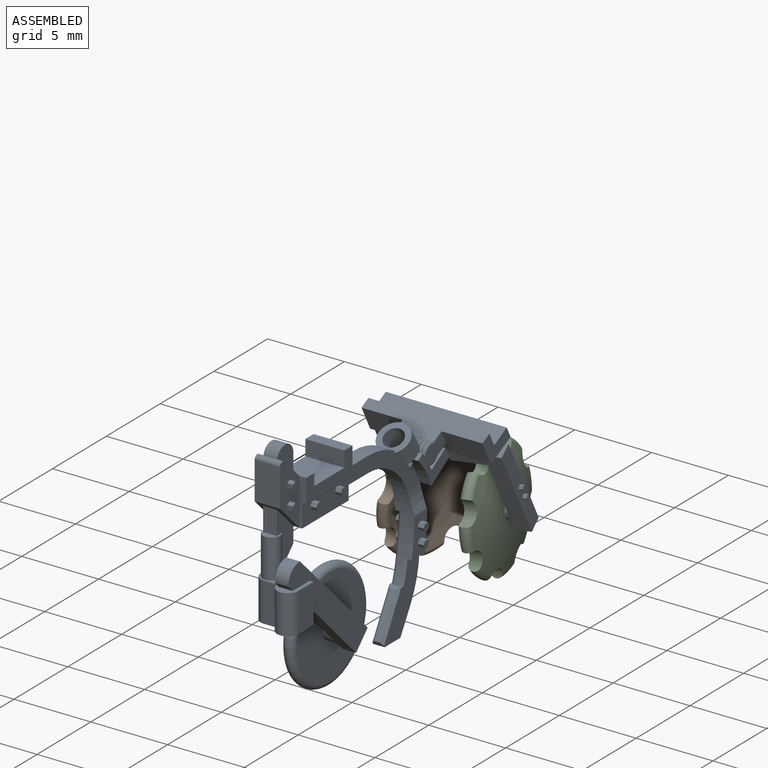
[diagram: assembled view]
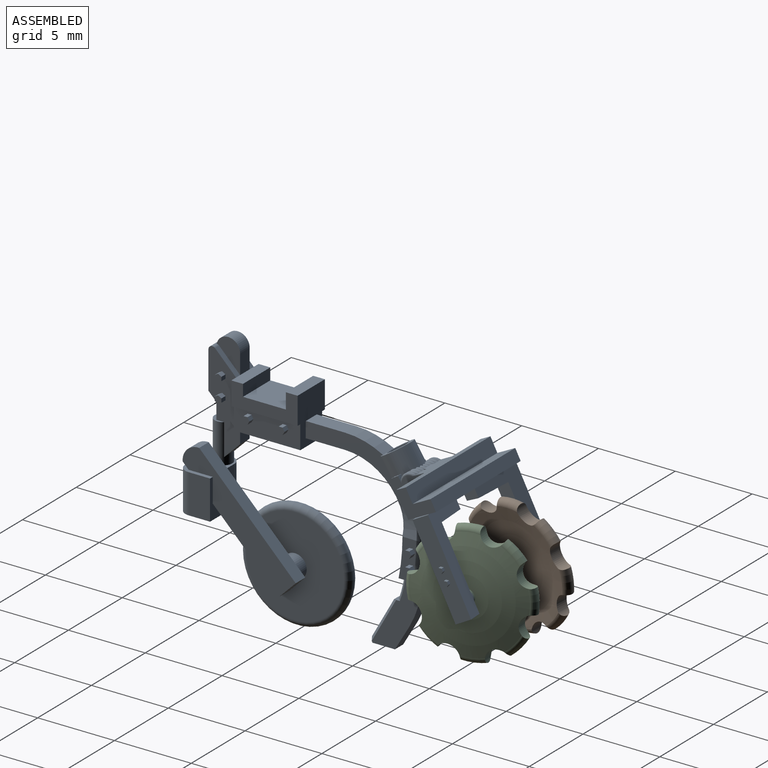
[diagram: assembled view, second angle]
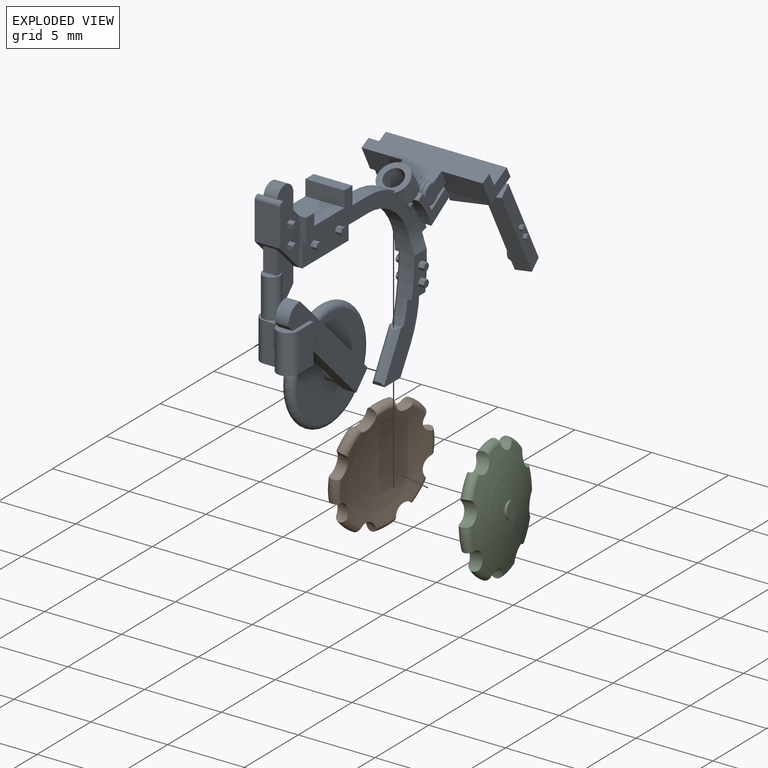
[diagram: exploded view]
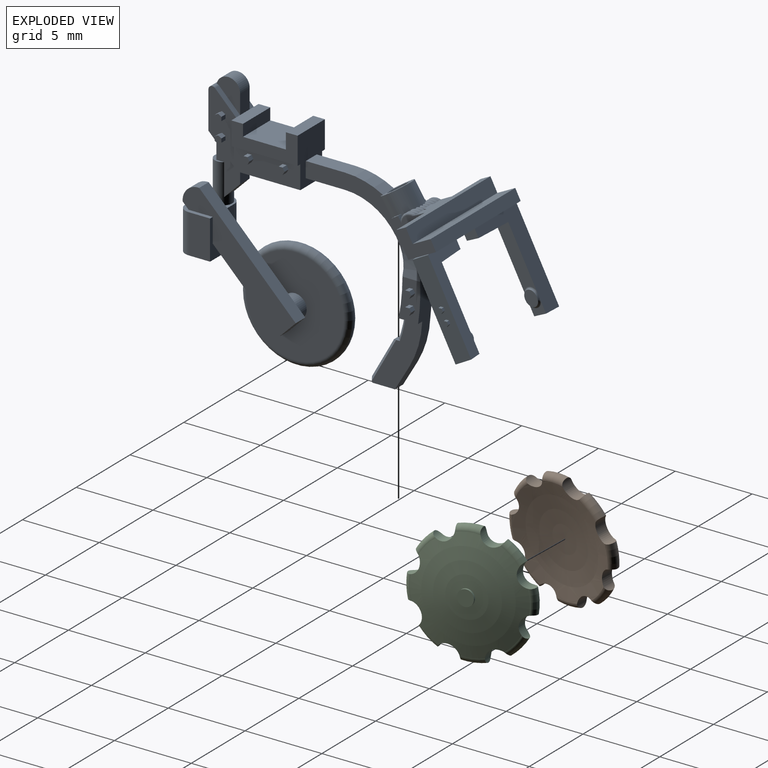
[diagram: exploded view, second angle]
ASSEMBLY  parts=3 mates=4
PART A: 291 faces, bbox 9x20.5x16.3 mm
  f0: cylinder r=1.02mm len=2.45mm, axis (0,0.54,-0.84), area 7mm2, adj f2,f3,f4,f5,f6,f7,f8,f12
  f1: cylinder r=0.64mm len=2.4mm, axis (0,-0.54,0.84), area 7.8mm2, adj f9,f10,f11,f51,f52,f132,f287,f288
  f2: torus R=0.57mm, axis (1,0,0), area 0.4mm2, adj f0,f3,f8,f138,f141
  f3: torus R=0.57mm, axis (1,0,0), area 0.2mm2, adj f0,f2,f4,f141
  f4: torus R=0.57mm, axis (1,0,0), area 0.1mm2, adj f0,f3,f12,f22,f24,f43,f141
  f5: torus R=0.57mm, axis (1,0,0), area 0.1mm2, adj f0,f6,f13,f22,f23,f38,f141
  f6: torus R=0.57mm, axis (1,0,0), area 0.2mm2, adj f0,f5,f7,f141
  f7: torus R=0.57mm, axis (1,0,0), area 0.4mm2, adj f0,f6,f35,f37,f141
  f8: plane 0.47x0.36mm, normal (0,0.84,0.54), area 0.1mm2, adj f0,f2,f132,f136,f138
  f9: cylinder r=5.08mm len=1.93mm, axis (-1,0,0), area 1.7mm2, adj f1,f52,f132,f133,f136,f288
  f10: plane 0.69x0.43mm, normal (0,-0.54,0.84), area 0.3mm2, adj f1,f11,f37,f137,f290
  f11: cylinder r=5.08mm len=1.93mm, axis (-1,0,0), area 1.7mm2, adj f1,f10,f51,f133,f137,f288
  f12: torus R=0.57mm, axis (1,0,0), area 0.1mm2, adj f0,f4,f13,f22,f41,f43
  f13: torus R=0.57mm, axis (1,0,0), area 0.1mm2, adj f0,f5,f12,f22,f38,f41
  f14: plane 1.17x1.04mm, normal (-0.98,-0.15,-0.08), area 0.5mm2, adj f148,f150,f157,f284
  f15: cylinder r=0.51mm len=0.52mm, axis (0.98,0.15,0.08), area 0mm2, adj f165,f285
  f16: plane 3.94x2.71mm, normal (0.98,-0.15,-0.08), area 3.8mm2, adj f152,f154,f155,f281
  f17: cylinder r=0.51mm len=0.52mm, axis (-0.98,0.15,0.08), area 0mm2, adj f167,f282
  f18: plane 5.87x3.7mm, normal (0.98,0.15,0.08), area 6mm2, adj f148,f150,f157,f158,f197,f198,f199,f200
  f19: plane 2.92x0.46mm, normal (0,0.46,-0.89), area 0.8mm2, adj f142,f147,f154
  f20: plane 7.87x1.81mm, normal (0,0.46,-0.89), area 8.3mm2, adj f142,f143,f146,f147,f149,f150,f152,f153
  f21: plane 2.92x0.46mm, normal (0,0.46,-0.89), area 0.8mm2, adj f142,f146,f148
  f22: cylinder r=0.45mm len=0.76mm, axis (1,0,0), area 0.2mm2, adj f4,f5,f12,f13,f23,f24,f38,f41
  f23: plane 0.21x0.08mm, normal (-1,0,0), area 0mm2, adj f5,f22,f141
  f24: plane 0.21x0.08mm, normal (1,0,0), area 0mm2, adj f4,f22,f141
  f25: torus R=0.57mm, axis (1,0,0), area 0.4mm2, adj f26,f40,f136,f140
  f26: torus R=0.57mm, axis (1,0,0), area 0.4mm2, adj f25,f27,f40,f140
  f27: torus R=0.57mm, axis (1,0,0), area 0.4mm2, adj f26,f28,f40,f140
  f28: torus R=0.57mm, axis (1,0,0), area 0.4mm2, adj f27,f29,f40,f44,f140
  f29: torus R=0.57mm, axis (1,0,0), area 0.3mm2, adj f28,f30,f40,f42,f44,f140
  f30: torus R=0.57mm, axis (1,0,0), area 0.3mm2, adj f29,f31,f39,f40,f42,f140
  f31: torus R=0.57mm, axis (1,0,0), area 0.4mm2, adj f30,f32,f39,f40,f140
  f32: torus R=0.57mm, axis (1,0,0), area 0.4mm2, adj f31,f33,f40,f140
  f33: torus R=0.57mm, axis (1,0,0), area 0.4mm2, adj f32,f34,f40,f140
  f34: torus R=0.57mm, axis (1,0,0), area 0.4mm2, adj f33,f40,f137,f140
  f35: torus R=0.57mm, axis (1,0,0), area 0.5mm2, adj f7,f37,f137,f141
  f36: plane 1.36x1.36mm, normal (0,0.71,0.71), area 0.7mm2, adj f47,f68,f131,f139
  f37: plane 0.47x0.36mm, normal (0,0.84,0.54), area 0.1mm2, adj f0,f7,f10,f35,f137
  f38: plane 0.15x0.14mm, normal (0,-0.54,0.84), area 0mm2, adj f5,f13,f22
  f39: plane 0.15x0.14mm, normal (0,0.54,-0.84), area 0mm2, adj f30,f31,f40
  f40: plane 2.62x0.53mm, normal (0,0.84,0.54), area 0.9mm2, adj f25,f26,f27,f28,f29,f30,f31,f32
  f41: plane 0.15x0.14mm, normal (0,-0.54,0.84), area 0mm2, adj f12,f13,f22
  f42: plane 0.15x0.14mm, normal (0,0.54,-0.84), area 0mm2, adj f29,f30,f40
  f43: plane 0.15x0.14mm, normal (0,-0.54,0.84), area 0mm2, adj f4,f12,f22
  f44: plane 0.15x0.14mm, normal (0,0.54,-0.84), area 0mm2, adj f28,f29,f40
  f45: cylinder r=5.08mm len=2.49mm, axis (1,0,0), area 2.6mm2, adj f51,f52,f98,f287
  f46: plane 3.05x0.44mm, normal (0,-1,0), area 1mm2, adj f50,f68,f70,f124,f125,f130
  f47: plane 2.03x1.53mm, normal (-1,0,0), area 1.7mm2, adj f36,f62,f73,f122,f123,f139
  f48: plane 2.03x1.53mm, normal (1,0,0), area 1.7mm2, adj f62,f73,f122,f123,f128,f139
  f49: plane 4.32x0.25mm, normal (0,0,-1), area 1.1mm2, adj f63,f69,f71,f126
  f50: plane 4.32x0.25mm, normal (0,0,-1), area 1.1mm2, adj f46,f63,f70,f125
  f51: plane 7.62x4.97mm, normal (-1,0,0), area 9.4mm2, adj f0,f1,f11,f45,f53,f54,f57,f63
  f52: plane 7.33x3.39mm, normal (1,0,0), area 7.6mm2, adj f0,f1,f9,f45,f53,f63,f98,f100
  f53: plane 2.54x1.02mm, normal (0,0,-1), area 2.6mm2, adj f51,f52,f63,f100
  f54: plane 1.15x0.31mm, normal (0,0,-1), area 0.2mm2, adj f51,f57,f100,f114,f116
  f55: plane 1.27x0.57mm, normal (0,0,-1), area 0.5mm2, adj f56,f57,f101,f104,f106,f117
  f56: cylinder r=12.7mm len=2.52mm, axis (1,0,0), area 1mm2, adj f55,f100,f101,f105
  f57: cylinder r=12.7mm len=2.54mm, axis (1,0,0), area 1.3mm2, adj f51,f54,f55,f99,f101,f102,f103,f107
  f58: plane 1.02x0.89mm, normal (0,1,0), area 0.9mm2, adj f72,f74,f75,f124
  f59: cylinder r=0.76mm len=1.52mm, axis (1,0,0), area 3.4mm2, adj f60,f85,f92
  f60: plane 1.71x1.71mm, normal (-1,0,0), area 0.4mm2, adj f59,f86,f88,f89
  f61: cylinder r=0.57mm len=2.54mm, axis (0,0,1), area 7.2mm2, adj f72,f74,f75,f76,f83
  f62: plane 0.89x0.02mm, normal (0,0,1), area 0mm2, adj f47,f48,f122,f123
  f63: plane 3.3x2.54mm, normal (0,1,0), area 6.6mm2, adj f49,f50,f51,f52,f53,f64,f70,f71
  f64: plane 2.54x0.76mm, normal (0,0,1), area 1.9mm2, adj f63,f65,f70,f71
  f65: plane 2.54x1.02mm, normal (0,-1,0), area 2.6mm2, adj f64,f66,f70,f71
  f66: plane 2.79x2.54mm, normal (0,0,1), area 7.1mm2, adj f65,f67,f70,f71
  f67: plane 2.54x0.76mm, normal (0,1,0), area 1.9mm2, adj f66,f68,f70,f71
  f68: plane 2.54x0.76mm, normal (0,0,1), area 1.9mm2, adj f36,f46,f67,f69,f70,f71,f73,f128
  f69: plane 3.05x0.44mm, normal (0,-1,0), area 1mm2, adj f49,f68,f71,f124,f126,f131
  f70: plane 4.32x1.78mm, normal (1,0,0), area 4.6mm2, adj f46,f50,f63,f64,f65,f66,f67,f68
  f71: plane 4.32x1.78mm, normal (-1,0,0), area 4.6mm2, adj f49,f63,f64,f65,f66,f67,f68,f69
  f72: plane 1.04x1.04mm, normal (0,0.71,-0.71), area 1.1mm2, adj f58,f61,f74,f75
  f73: plane 1.27x0.89mm, normal (0,1,0), area 1.1mm2, adj f47,f48,f68,f123
  f74: plane 3.6x1.55mm, normal (-1,0,0), area 2.8mm2, adj f58,f61,f72,f76,f97,f127
  f75: plane 3.6x1.55mm, normal (1,0,0), area 2.8mm2, adj f58,f61,f72,f76,f97,f127
  f76: plane 1.14x0.93mm, normal (0,0,1), area 0.4mm2, adj f61,f74,f75,f97
  f77: cylinder r=0.7mm len=2.54mm, axis (0,0,1), area 5.6mm2, adj f78,f81,f82,f83
  f78: plane 2.54x0.85mm, normal (0,-1,0), area 2.1mm2, adj f77,f79,f82,f83
  f79: cylinder r=0.7mm len=2.54mm, axis (0,0,1), area 5.6mm2, adj f78,f80,f82,f83
  f80: plane 2.54x2.24mm, normal (0,1,0), area 4.3mm2, adj f79,f81,f82,f83,f85,f88,f90
  f81: plane 2.54x1.4mm, normal (1,0,0), area 3.5mm2, adj f77,f80,f82,f83
  f82: plane 2.94x2.1mm, normal (0,0,-1), area 4.7mm2, adj f77,f78,f79,f80,f81
  f83: plane 2.94x2.1mm, normal (0,0,1), area 2.2mm2, adj f61,f77,f78,f79,f80,f81,f84,f85
  f84: plane 0.89x0.39mm, normal (0,-0.71,-0.71), area 0.5mm2, adj f83,f85,f87,f90
  f85: plane 6.74x6.74mm, normal (-1,0,0), area 10.4mm2, adj f59,f80,f83,f84,f86,f87,f88
  f86: plane 6.29x6.29mm, normal (0,0.71,0.71), area 7.9mm2, adj f60,f85,f87,f89,f90
  f87: cylinder r=1.02mm len=1.08mm, axis (-1,0,0), area 1.5mm2, adj f84,f85,f86,f90
  f88: plane 4.32x4.32mm, normal (0,-0.71,-0.71), area 5.4mm2, adj f60,f80,f85,f89,f90
  f89: plane 1.08x1.08mm, normal (0,0.71,-0.71), area 1.4mm2, adj f60,f86,f88,f90
  f90: plane 7.37x7.37mm, normal (1,0,0), area 12.7mm2, adj f80,f83,f84,f86,f87,f88,f89
  f91: plane 6.38x6.38mm, normal (-1,0,0), area 30.2mm2, adj f93,f94
  f92: plane 6.38x6.38mm, normal (1,0,0), area 30.2mm2, adj f59,f93
  f93: torus R=3.19mm, axis (-1,0,0), area 25.8mm2, adj f91,f92
  f94: cylinder r=0.76mm len=1.52mm, axis (1,0,0), area 3mm2, adj f91,f96
  f95: plane 0.76x0.76mm, normal (-1,0,0), area 0.5mm2, adj f96
  f96: torus R=0.38mm, axis (-1,0,0), area 2.3mm2, adj f94,f95
  f97: plane 1.55x0.89mm, normal (0,-1,0), area 1.4mm2, adj f74,f75,f76,f127
  f98: plane 2.54x1.02mm, normal (0,0,1), area 2.6mm2, adj f45,f51,f52,f63
  f99: cylinder r=5.08mm len=1.56mm, axis (1,0,0), area 1.7mm2, adj f51,f57,f103,f133
  f100: cylinder r=3.93mm len=3.96mm, axis (1,0,0), area 6.4mm2, adj f51,f52,f53,f54,f56,f103,f106
  f101: plane 2.52x1.41mm, normal (1,0,0), area 2.7mm2, adj f55,f56,f57,f103,f169,f170,f171,f172
  f102: plane 2.52x0.14mm, normal (-1,0,0), area 0mm2, adj f57,f107
  f103: cylinder r=5.08mm len=1.59mm, axis (0,-1,0), area 1.9mm2, adj f52,f57,f99,f100,f101
  f104: plane 4.46x3.29mm, normal (1,0,0), area 6.4mm2, adj f55,f108,f109,f110,f112,f117,f118,f119
  f105: plane 2.52x0.25mm, normal (1,0,0), area 0mm2, adj f56,f106
  f106: cylinder r=15.92mm len=2.52mm, axis (1,0,0), area 1.5mm2, adj f55,f100,f105,f113,f116
  f107: cylinder r=19.83mm len=2.52mm, axis (1,0,0), area 1.6mm2, adj f57,f102,f108,f114
  f108: cylinder r=6.29mm len=2.89mm, axis (1,0,0), area 2.3mm2, adj f57,f104,f107,f109,f114
  f109: plane 1.58x0.93mm, normal (0,0.86,-0.51), area 1.4mm2, adj f104,f108,f110,f114
  f110: plane 1.46x0.76mm, normal (0,0,-1), area 1.1mm2, adj f104,f109,f114,f119
  f111: plane 2.56x1.43mm, normal (0,-0.87,0.49), area 1.1mm2, adj f118,f119,f120,f121
  f112: plane 0.76x0.34mm, normal (0,0,1), area 0.1mm2, adj f104,f113,f114,f115,f117,f118,f120,f121
  f113: cylinder r=7.59mm len=1.54mm, axis (1,0,0), area 0.6mm2, adj f106,f112,f115,f117
  f114: plane 6.98x3.42mm, normal (-1,0,0), area 8.6mm2, adj f54,f107,f108,f109,f110,f112,f115,f116
  f115: cone r=7.59mm half-angle=45deg, axis (-1,0,0), area 0.4mm2, adj f112,f113,f114,f116
  f116: cone r=15.92mm half-angle=45deg, axis (-1,0,0), area 0.7mm2, adj f54,f106,f114,f115
  f117: cone r=7.77mm half-angle=45deg, axis (1,0,0), area 0.4mm2, adj f55,f104,f112,f113
  f118: plane 2.84x1.7mm, normal (0.71,-0.62,0.35), area 0.8mm2, adj f104,f111,f112,f119,f120
  f119: plane 0.76x0.28mm, normal (0,-0.86,-0.51), area 0.2mm2, adj f104,f110,f111,f114,f118,f121
  f120: plane 0.58x0.16mm, normal (0,-0.51,0.86), area 0.1mm2, adj f111,f112,f118,f121
  f121: plane 2.84x1.7mm, normal (-0.71,-0.62,0.35), area 0.8mm2, adj f111,f112,f114,f119,f120
  f122: cylinder r=0.76mm len=0.89mm, axis (1,0,0), area 0.9mm2, adj f47,f48,f62,f139
  f123: cylinder r=0.76mm len=0.89mm, axis (1,0,0), area 1.1mm2, adj f47,f48,f62,f73
  f124: plane 4.32x2.03mm, normal (0,0,-1), area 8.8mm2, adj f46,f58,f63,f69,f125,f126,f127
  f125: plane 4.32x1.52mm, normal (1,0,0), area 6.2mm2, adj f46,f50,f63,f124,f232,f233,f234,f235
  f126: plane 4.32x1.52mm, normal (-1,0,0), area 6.2mm2, adj f49,f63,f69,f124,f226,f227,f228,f229
  f127: plane 1.8x1.8mm, normal (0,-0.71,-0.71), area 2.3mm2, adj f74,f75,f97,f124,f129,f130,f131
  f128: plane 1.36x1.36mm, normal (0,0.71,0.71), area 0.7mm2, adj f48,f68,f130,f139
  f129: plane 2.43x1.65mm, normal (0,-1,0), area 4mm2, adj f127,f130,f131,f139
  f130: plane 4.49x1.8mm, normal (1,0,0), area 5.1mm2, adj f46,f127,f128,f129,f139,f260,f261,f262
  f131: plane 4.49x1.8mm, normal (-1,0,0), area 5.1mm2, adj f36,f69,f127,f129,f139,f254,f255,f256
  f132: plane 0.69x0.43mm, normal (0,-0.54,0.84), area 0.3mm2, adj f1,f8,f9,f136,f289
  f133: plane 2.54x1.71mm, normal (0,0.54,-0.84), area 5.1mm2, adj f9,f11,f99,f134,f136,f137
  f134: plane 2.54x0.64mm, normal (0,0.84,0.54), area 1.9mm2, adj f133,f135,f136,f137
  f135: plane 2.54x1.28mm, normal (0,-0.54,0.84), area 3.9mm2, adj f40,f134,f136,f137
  f136: plane 2.93x2.84mm, normal (1,0,0), area 3.9mm2, adj f8,f9,f25,f40,f132,f133,f134,f135
  f137: plane 2.93x2.84mm, normal (-1,0,0), area 3.9mm2, adj f10,f11,f34,f35,f37,f40,f133,f134
  f138: torus R=0.57mm, axis (1,0,0), area 0.5mm2, adj f2,f8,f136,f141
  f139: cylinder r=0.25mm len=1.65mm, axis (-1,0,0), area 0.8mm2, adj f36,f47,f48,f122,f128,f129,f130,f131
  f140: plane 2.54x0.92mm, normal (0,0.46,-0.89), area 2.2mm2, adj f25,f26,f27,f28,f29,f30,f31,f32
  f141: plane 7.93x1.51mm, normal (0,-0.46,0.89), area 7.5mm2, adj f2,f3,f4,f5,f6,f7,f22,f23
  f142: plane 7.87x1.54mm, normal (0,-0.89,-0.46), area 11.2mm2, adj f19,f20,f21,f136,f137,f140,f141,f146
  f143: plane 7.87x0.68mm, normal (0,0.89,0.46), area 6mm2, adj f20,f144,f146,f147
  f144: plane 7.87x1.17mm, normal (0,-0.46,0.89), area 10.4mm2, adj f143,f145,f146,f147
  f145: plane 7.87x0.86mm, normal (0,0.89,0.46), area 7.6mm2, adj f141,f144,f146,f147
  f146: plane 2.61x1.87mm, normal (1,0,0), area 2.3mm2, adj f20,f21,f141,f142,f143,f144,f145,f158
  f147: plane 2.61x1.87mm, normal (-1,0,0), area 2.3mm2, adj f19,f20,f141,f142,f143,f144,f145,f160
  f148: plane 5.52x3.35mm, normal (0.17,-0.87,-0.45), area 8mm2, adj f14,f18,f21,f149,f151,f156,f157,f158
  f149: plane 1.24x1.14mm, normal (-0.98,-0.15,-0.08), area 0.8mm2, adj f20,f148,f150,f151
  f150: plane 5.51x3.33mm, normal (-0.17,0.87,0.45), area 7.9mm2, adj f14,f18,f20,f149,f151,f156,f157,f158
  f151: plane 2.43x1.24mm, normal (0,0.46,-0.89), area 2.3mm2, adj f148,f149,f150,f156
  f152: plane 5.51x3.33mm, normal (0.17,0.87,0.45), area 7.9mm2, adj f16,f20,f153,f155,f159,f160,f161,f162
  f153: plane 1.24x1.14mm, normal (0.98,-0.15,-0.08), area 0.8mm2, adj f20,f152,f154,f155
  f154: plane 5.52x3.35mm, normal (-0.17,-0.87,-0.45), area 8mm2, adj f16,f19,f153,f155,f159,f160,f161,f162
  f155: plane 2.43x1.24mm, normal (0,0.46,-0.89), area 2.3mm2, adj f16,f152,f153,f154
  f156: plane 3.94x2.71mm, normal (-0.98,-0.15,-0.08), area 3.8mm2, adj f148,f150,f151,f286
  f157: plane 1.18x1.04mm, normal (0,0.46,-0.89), area 1mm2, adj f14,f18,f148,f150
  f158: plane 0.94x0.49mm, normal (0,-0.46,0.89), area 0.3mm2, adj f18,f146,f148,f150
  f159: plane 1.17x1.04mm, normal (0.98,-0.15,-0.08), area 0.5mm2, adj f152,f154,f162,f283
  f160: plane 0.94x0.49mm, normal (0,-0.46,0.89), area 0.3mm2, adj f147,f152,f154,f161
  f161: plane 5.87x3.7mm, normal (-0.98,0.15,0.08), area 6mm2, adj f152,f154,f160,f162,f211,f212,f213,f214
  f162: plane 1.18x1.04mm, normal (0,0.46,-0.89), area 1mm2, adj f152,f154,f159,f161
  f163: plane 0.21x0.11mm, normal (0.98,0.15,0.08), area 0mm2, adj f148,f164
  f164: cylinder r=0.51mm len=0.22mm, axis (0.98,0.15,0.08), area 0mm2, adj f148,f163,f165
  f165: plane 1.01x1mm, normal (-0.98,-0.15,-0.08), area 0.8mm2, adj f15,f164,f284,f286
  f166: cylinder r=0.51mm len=0.22mm, axis (-0.98,0.15,0.08), area 0mm2, adj f154,f167,f168
  f167: plane 1.01x1mm, normal (0.98,-0.15,-0.08), area 0.8mm2, adj f17,f166,f281,f283
  f168: plane 0.21x0.11mm, normal (-0.98,0.15,0.08), area 0mm2, adj f154,f166
  f169: plane 0.38x0.22mm, normal (0,0.87,-0.5), area 0.1mm2, adj f101,f170,f174,f175
  f170: plane 0.38x0.22mm, normal (0,0.87,0.5), area 0.1mm2, adj f101,f169,f171,f175
  f171: plane 0.38x0.25mm, normal (0,0,1), area 0.1mm2, adj f101,f170,f172,f175
  f172: plane 0.38x0.22mm, normal (0,-0.87,0.5), area 0.1mm2, adj f101,f171,f173,f175
  f173: plane 0.38x0.22mm, normal (0,-0.87,-0.5), area 0.1mm2, adj f101,f172,f174,f175
  f174: plane 0.38x0.25mm, normal (0,0,-1), area 0.1mm2, adj f101,f169,f173,f175
  f175: plane 0.51x0.44mm, normal (1,0,0), area 0.2mm2, adj f169,f170,f171,f172,f173,f174
  f176: plane 0.38x0.22mm, normal (0,-0.87,-0.5), area 0.1mm2, adj f101,f177,f181,f182
  f177: plane 0.38x0.25mm, normal (0,0,-1), area 0.1mm2, adj f101,f176,f178,f182
  f178: plane 0.38x0.22mm, normal (0,0.87,-0.5), area 0.1mm2, adj f101,f177,f179,f182
  f179: plane 0.38x0.22mm, normal (0,0.87,0.5), area 0.1mm2, adj f101,f178,f180,f182
  f180: plane 0.38x0.25mm, normal (0,0,1), area 0.1mm2, adj f101,f179,f181,f182
  f181: plane 0.38x0.22mm, normal (0,-0.87,0.5), area 0.1mm2, adj f101,f176,f180,f182
  f182: plane 0.51x0.44mm, normal (1,0,0), area 0.2mm2, adj f176,f177,f178,f179,f180,f181
  f183: plane 0.38x0.22mm, normal (0,0.87,-0.5), area 0.1mm2, adj f114,f184,f188,f189
  f184: plane 0.38x0.25mm, normal (0,0,-1), area 0.1mm2, adj f114,f183,f185,f189
  f185: plane 0.38x0.22mm, normal (0,-0.87,-0.5), area 0.1mm2, adj f114,f184,f186,f189
  f186: plane 0.38x0.22mm, normal (0,-0.87,0.5), area 0.1mm2, adj f114,f185,f187,f189
  f187: plane 0.38x0.25mm, normal (0,0,1), area 0.1mm2, adj f114,f186,f188,f189
  f188: plane 0.38x0.22mm, normal (0,0.87,0.5), area 0.1mm2, adj f114,f183,f187,f189
  f189: plane 0.51x0.44mm, normal (-1,0,0), area 0.2mm2, adj f183,f184,f185,f186,f187,f188
  f190: plane 0.38x0.25mm, normal (0,0,-1), area 0.1mm2, adj f114,f191,f195,f196
  f191: plane 0.38x0.22mm, normal (0,-0.87,-0.5), area 0.1mm2, adj f114,f190,f192,f196
  f192: plane 0.38x0.22mm, normal (0,-0.87,0.5), area 0.1mm2, adj f114,f191,f193,f196
  f193: plane 0.38x0.25mm, normal (0,0,1), area 0.1mm2, adj f114,f192,f194,f196
  f194: plane 0.38x0.22mm, normal (0,0.87,0.5), area 0.1mm2, adj f114,f193,f195,f196
  f195: plane 0.38x0.22mm, normal (0,0.87,-0.5), area 0.1mm2, adj f114,f190,f194,f196
  f196: plane 0.51x0.44mm, normal (-1,0,0), area 0.2mm2, adj f190,f191,f192,f193,f194,f195
  f197: plane 0.28x0.18mm, normal (-0.09,0.84,-0.54), area 0mm2, adj f18,f198,f202,f203
  f198: plane 0.25x0.19mm, normal (-0.17,0.87,0.45), area 0mm2, adj f18,f197,f199,f203
  f199: plane 0.28x0.23mm, normal (-0.09,0.04,1), area 0mm2, adj f18,f198,f200,f203
  f200: plane 0.28x0.18mm, normal (0.09,-0.84,0.54), area 0mm2, adj f18,f199,f201,f203
  f201: plane 0.25x0.19mm, normal (0.17,-0.87,-0.45), area 0mm2, adj f18,f200,f202,f203
  f202: plane 0.28x0.23mm, normal (0.09,-0.04,-1), area 0mm2, adj f18,f197,f201,f203
  f203: plane 0.38x0.34mm, normal (0.98,0.15,0.08), area 0.1mm2, adj f197,f198,f199,f200,f201,f202
  f204: plane 0.28x0.18mm, normal (-0.09,0.84,-0.54), area 0mm2, adj f18,f205,f209,f210
  f205: plane 0.25x0.19mm, normal (-0.17,0.87,0.45), area 0mm2, adj f18,f204,f206,f210
  f206: plane 0.28x0.23mm, normal (-0.09,0.04,1), area 0mm2, adj f18,f205,f207,f210
  f207: plane 0.28x0.18mm, normal (0.09,-0.84,0.54), area 0mm2, adj f18,f206,f208,f210
  f208: plane 0.25x0.19mm, normal (0.17,-0.87,-0.45), area 0mm2, adj f18,f207,f209,f210
  f209: plane 0.28x0.23mm, normal (0.09,-0.04,-1), area 0mm2, adj f18,f204,f208,f210
  f210: plane 0.38x0.34mm, normal (0.98,0.15,0.08), area 0.1mm2, adj f204,f205,f206,f207,f208,f209
  f211: plane 0.25x0.19mm, normal (-0.17,-0.87,-0.45), area 0mm2, adj f161,f212,f216,f217
  f212: plane 0.28x0.18mm, normal (-0.09,-0.84,0.54), area 0mm2, adj f161,f211,f213,f217
  f213: plane 0.28x0.23mm, normal (0.09,0.04,1), area 0mm2, adj f161,f212,f214,f217
  f214: plane 0.25x0.19mm, normal (0.17,0.87,0.45), area 0mm2, adj f161,f213,f215,f217
  f215: plane 0.28x0.18mm, normal (0.09,0.84,-0.54), area 0mm2, adj f161,f214,f216,f217
  f216: plane 0.28x0.23mm, normal (-0.09,-0.04,-1), area 0mm2, adj f161,f211,f215,f217
  f217: plane 0.38x0.34mm, normal (-0.98,0.15,0.08), area 0.1mm2, adj f211,f212,f213,f214,f215,f216
  f218: plane 0.25x0.19mm, normal (-0.17,-0.87,-0.45), area 0mm2, adj f161,f219,f223,f224
  f219: plane 0.28x0.18mm, normal (-0.09,-0.84,0.54), area 0mm2, adj f161,f218,f220,f224
  f220: plane 0.28x0.23mm, normal (0.09,0.04,1), area 0mm2, adj f161,f219,f221,f224
  f221: plane 0.25x0.19mm, normal (0.17,0.87,0.45), area 0mm2, adj f161,f220,f222,f224
  f222: plane 0.28x0.18mm, normal (0.09,0.84,-0.54), area 0mm2, adj f161,f221,f223,f224
  f223: plane 0.28x0.23mm, normal (-0.09,-0.04,-1), area 0mm2, adj f161,f218,f222,f224
  f224: plane 0.38x0.34mm, normal (-0.98,0.15,0.08), area 0.1mm2, adj f218,f219,f220,f221,f222,f223
  f225: plane 0.51x0.44mm, normal (-1,0,0), area 0.2mm2, adj f226,f227,f228,f229,f230,f231
  f226: plane 0.38x0.22mm, normal (0,0.87,-0.5), area 0.1mm2, adj f126,f225,f227,f231
  f227: plane 0.38x0.25mm, normal (0,0,-1), area 0.1mm2, adj f126,f225,f226,f228
  f228: plane 0.38x0.22mm, normal (0,-0.87,-0.5), area 0.1mm2, adj f126,f225,f227,f229
  f229: plane 0.38x0.22mm, normal (0,-0.87,0.5), area 0.1mm2, adj f126,f225,f228,f230
  f230: plane 0.38x0.25mm, normal (0,0,1), area 0.1mm2, adj f126,f225,f229,f231
  f231: plane 0.38x0.22mm, normal (0,0.87,0.5), area 0.1mm2, adj f126,f225,f226,f230
  f232: plane 0.38x0.22mm, normal (0,0.87,0.5), area 0.1mm2, adj f125,f233,f237,f238
  f233: plane 0.38x0.25mm, normal (0,0,1), area 0.1mm2, adj f125,f232,f234,f238
  f234: plane 0.38x0.22mm, normal (0,-0.87,0.5), area 0.1mm2, adj f125,f233,f235,f238
  f235: plane 0.38x0.22mm, normal (0,-0.87,-0.5), area 0.1mm2, adj f125,f234,f236,f238
  f236: plane 0.38x0.25mm, normal (0,0,-1), area 0.1mm2, adj f125,f235,f237,f238
  f237: plane 0.38x0.22mm, normal (0,0.87,-0.5), area 0.1mm2, adj f125,f232,f236,f238
  f238: plane 0.51x0.44mm, normal (1,0,0), area 0.2mm2, adj f232,f233,f234,f235,f236,f237
  f239: plane 0.51x0.44mm, normal (-1,0,0), area 0.2mm2, adj f240,f241,f242,f243,f244,f245
  f240: plane 0.38x0.25mm, normal (0,0,-1), area 0.1mm2, adj f126,f239,f241,f245
  f241: plane 0.38x0.22mm, normal (0,-0.87,-0.5), area 0.1mm2, adj f126,f239,f240,f242
  f242: plane 0.38x0.22mm, normal (0,-0.87,0.5), area 0.1mm2, adj f126,f239,f241,f243
  f243: plane 0.38x0.25mm, normal (0,0,1), area 0.1mm2, adj f126,f239,f242,f244
  f244: plane 0.38x0.22mm, normal (0,0.87,0.5), area 0.1mm2, adj f126,f239,f243,f245
  f245: plane 0.38x0.22mm, normal (0,0.87,-0.5), area 0.1mm2, adj f126,f239,f240,f244
  f246: plane 0.38x0.22mm, normal (0,0.87,-0.5), area 0.1mm2, adj f125,f247,f251,f252
  f247: plane 0.38x0.22mm, normal (0,0.87,0.5), area 0.1mm2, adj f125,f246,f248,f252
  f248: plane 0.38x0.25mm, normal (0,0,1), area 0.1mm2, adj f125,f247,f249,f252
  f249: plane 0.38x0.22mm, normal (0,-0.87,0.5), area 0.1mm2, adj f125,f248,f250,f252
  f250: plane 0.38x0.22mm, normal (0,-0.87,-0.5), area 0.1mm2, adj f125,f249,f251,f252
  f251: plane 0.38x0.25mm, normal (0,0,-1), area 0.1mm2, adj f125,f246,f250,f252
  f252: plane 0.51x0.44mm, normal (1,0,0), area 0.2mm2, adj f246,f247,f248,f249,f250,f251
  f253: plane 0.51x0.44mm, normal (-1,0,0), area 0.2mm2, adj f254,f255,f256,f257,f258,f259
  f254: plane 0.38x0.22mm, normal (0,0.5,0.87), area 0.1mm2, adj f131,f253,f255,f259
  f255: plane 0.38x0.22mm, normal (0,-0.5,0.87), area 0.1mm2, adj f131,f253,f254,f256
  f256: plane 0.38x0.25mm, normal (0,-1,0), area 0.1mm2, adj f131,f253,f255,f257
  f257: plane 0.38x0.22mm, normal (0,-0.5,-0.87), area 0.1mm2, adj f131,f253,f256,f258
  f258: plane 0.38x0.22mm, normal (0,0.5,-0.87), area 0.1mm2, adj f131,f253,f257,f259
  f259: plane 0.38x0.25mm, normal (0,1,0), area 0.1mm2, adj f131,f253,f254,f258
  f260: plane 0.38x0.25mm, normal (0,1,0), area 0.1mm2, adj f130,f261,f265,f266
  f261: plane 0.38x0.22mm, normal (0,0.5,-0.87), area 0.1mm2, adj f130,f260,f262,f266
  f262: plane 0.38x0.22mm, normal (0,-0.5,-0.87), area 0.1mm2, adj f130,f261,f263,f266
  f263: plane 0.38x0.25mm, normal (0,-1,0), area 0.1mm2, adj f130,f262,f264,f266
  f264: plane 0.38x0.22mm, normal (0,-0.5,0.87), area 0.1mm2, adj f130,f263,f265,f266
  f265: plane 0.38x0.22mm, normal (0,0.5,0.87), area 0.1mm2, adj f130,f260,f264,f266
  f266: plane 0.51x0.44mm, normal (1,0,0), area 0.2mm2, adj f260,f261,f262,f263,f264,f265
  f267: plane 0.51x0.44mm, normal (-1,0,0), area 0.2mm2, adj f268,f269,f270,f271,f272,f273
  f268: plane 0.38x0.25mm, normal (0,1,0), area 0.1mm2, adj f131,f267,f269,f273
  f269: plane 0.38x0.22mm, normal (0,0.5,0.87), area 0.1mm2, adj f131,f267,f268,f270
  f270: plane 0.38x0.22mm, normal (0,-0.5,0.87), area 0.1mm2, adj f131,f267,f269,f271
  f271: plane 0.38x0.25mm, normal (0,-1,0), area 0.1mm2, adj f131,f267,f270,f272
  f272: plane 0.38x0.22mm, normal (0,-0.5,-0.87), area 0.1mm2, adj f131,f267,f271,f273
  f273: plane 0.38x0.22mm, normal (0,0.5,-0.87), area 0.1mm2, adj f131,f267,f268,f272
  f274: plane 0.38x0.22mm, normal (0,0.5,-0.87), area 0.1mm2, adj f130,f275,f279,f280
  f275: plane 0.38x0.22mm, normal (0,-0.5,-0.87), area 0.1mm2, adj f130,f274,f276,f280
  f276: plane 0.38x0.25mm, normal (0,-1,0), area 0.1mm2, adj f130,f275,f277,f280
  f277: plane 0.38x0.22mm, normal (0,-0.5,0.87), area 0.1mm2, adj f130,f276,f278,f280
  f278: plane 0.38x0.22mm, normal (0,0.5,0.87), area 0.1mm2, adj f130,f277,f279,f280
  f279: plane 0.38x0.25mm, normal (0,1,0), area 0.1mm2, adj f130,f274,f278,f280
  f280: plane 0.51x0.44mm, normal (1,0,0), area 0.2mm2, adj f274,f275,f276,f277,f278,f279
  f281: torus R=0.64mm, axis (-0.98,0.15,0.08), area 0.2mm2, adj f16,f154,f167,f282
  f282: bspline ~0.69x0.45mm, area 0.1mm2, adj f17,f152,f281,f283
  f283: torus R=0.64mm, axis (-0.98,0.15,0.08), area 0.2mm2, adj f154,f159,f167,f282
  f284: torus R=0.64mm, axis (0.98,0.15,0.08), area 0.2mm2, adj f14,f148,f165,f285
  f285: bspline ~0.69x0.44mm, area 0.1mm2, adj f15,f150,f284,f286
  f286: torus R=0.64mm, axis (0.98,0.15,0.08), area 0.2mm2, adj f148,f156,f165,f285
  f287: plane 2.03x1.59mm, normal (0,-0.54,0.84), area 1.7mm2, adj f0,f1,f45,f51,f52
  f288: plane 1.27x1.07mm, normal (0,-0.54,0.84), area 1.2mm2, adj f1,f9,f11,f51,f52
  f289: plane 0.96x0.61mm, normal (0,0.54,-0.84), area 0.4mm2, adj f0,f1,f52,f132
  f290: plane 0.96x0.61mm, normal (0,0.54,-0.84), area 0.4mm2, adj f0,f1,f10,f51
PART B: 20 faces, bbox 1.3x8.3x8.3 mm
  f0: sphere r=15.24mm, area 37.6mm2, adj f1,f2,f3,f4,f5,f6,f7,f8
  f1: torus R=3.54mm, axis (-1,0,0), area 1.8mm2, adj f0,f9,f10,f17
  f2: torus R=3.54mm, axis (-1,0,0), area 1.8mm2, adj f0,f9,f16,f17
  f3: torus R=3.54mm, axis (-1,0,0), area 1.8mm2, adj f0,f9,f15,f16
  f4: torus R=3.54mm, axis (-1,0,0), area 1.8mm2, adj f0,f9,f14,f15
  f5: torus R=3.54mm, axis (-1,0,0), area 1.8mm2, adj f0,f9,f13,f14
  f6: torus R=3.54mm, axis (-1,0,0), area 1.8mm2, adj f0,f9,f12,f13
  f7: torus R=3.54mm, axis (-1,0,0), area 1.8mm2, adj f0,f9,f11,f12
  f8: torus R=3.54mm, axis (-1,0,0), area 1.8mm2, adj f0,f9,f10,f11
  f9: sphere r=15.24mm, area 36.7mm2, adj f1,f2,f3,f4,f5,f6,f7,f8
  f10: cylinder r=0.76mm len=1.51mm, axis (-1,0,0), area 1.6mm2, adj f0,f1,f8,f9
  f11: cylinder r=0.76mm len=1.23mm, axis (-1,0,0), area 1.6mm2, adj f0,f7,f8,f9
  f12: cylinder r=0.76mm len=1.51mm, axis (-1,0,0), area 1.6mm2, adj f0,f6,f7,f9
  f13: cylinder r=0.76mm len=1.23mm, axis (-1,0,0), area 1.6mm2, adj f0,f5,f6,f9
  f14: cylinder r=0.76mm len=1.51mm, axis (-1,0,0), area 1.6mm2, adj f0,f4,f5,f9
  f15: cylinder r=0.76mm len=1.23mm, axis (-1,0,0), area 1.6mm2, adj f0,f3,f4,f9
  f16: cylinder r=0.76mm len=1.51mm, axis (-1,0,0), area 1.6mm2, adj f0,f2,f3,f9
  f17: cylinder r=0.76mm len=1.23mm, axis (-1,0,0), area 1.6mm2, adj f0,f1,f2,f9
  f18: cylinder r=0.51mm len=1.02mm, axis (1,0,0), area 0.4mm2, adj f9,f19
  f19: plane 1.02x1.02mm, normal (-1,0,0), area 0.8mm2, adj f18
PART C: same geometry as B
PLACE A t=(3.09,-7.58,6.24)mm
PLACE B rot(axis=(0.94,0.08,-0.34),29.1deg) t=(0.16,8.13,-0.73)mm
PLACE C rot(axis=(0.02,0.24,-0.97),170.3deg) t=(6.02,8.13,-0.73)mm
MATE planar B.f1 <-> A.f17  axis (-0.98,0.15,0.08) through (0.03,8.15,-0.72)mm
MATE cylindrical C.f1 <-> A.f15  axis (-0.98,-0.15,-0.08) through (6.08,8.14,-0.72)mm
MATE cylindrical B.f1 <-> A.f17  axis (0.98,-0.15,-0.08) through (0.17,8.13,-0.73)mm
MATE planar A.f15 <-> C.f1  axis (-0.98,-0.15,-0.08) through (6.15,8.15,-0.72)mm
